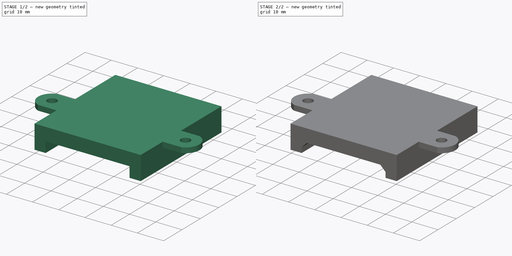
[diagram: build sequence overview — one tinted view per stage of 2, left to right]
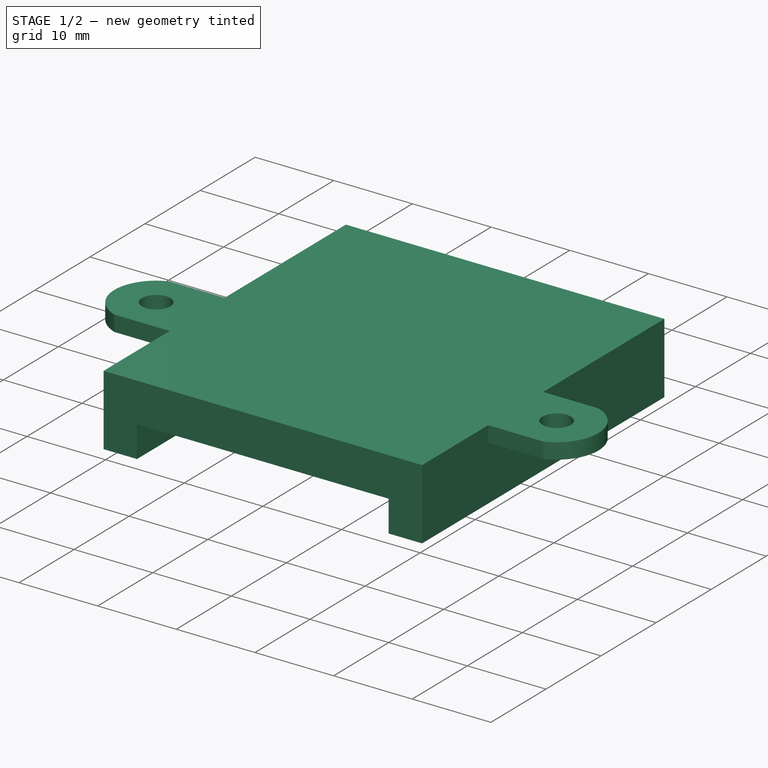
[diagram: stage 1 of 2 — iso view after this stage's code; geometry added in this stage tinted green]
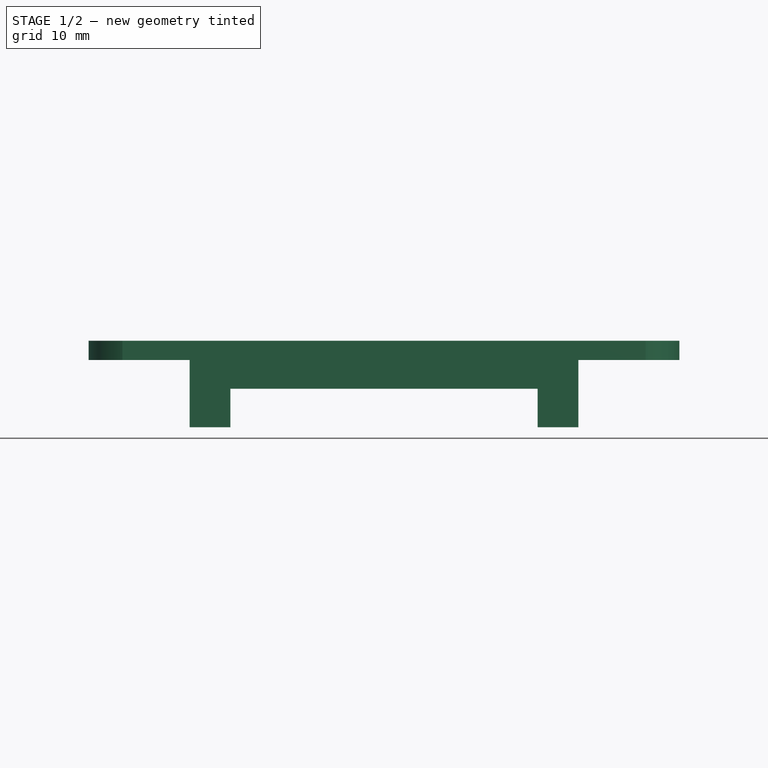
[diagram: stage 1 of 2 — front view after this stage's code; geometry added in this stage tinted green]
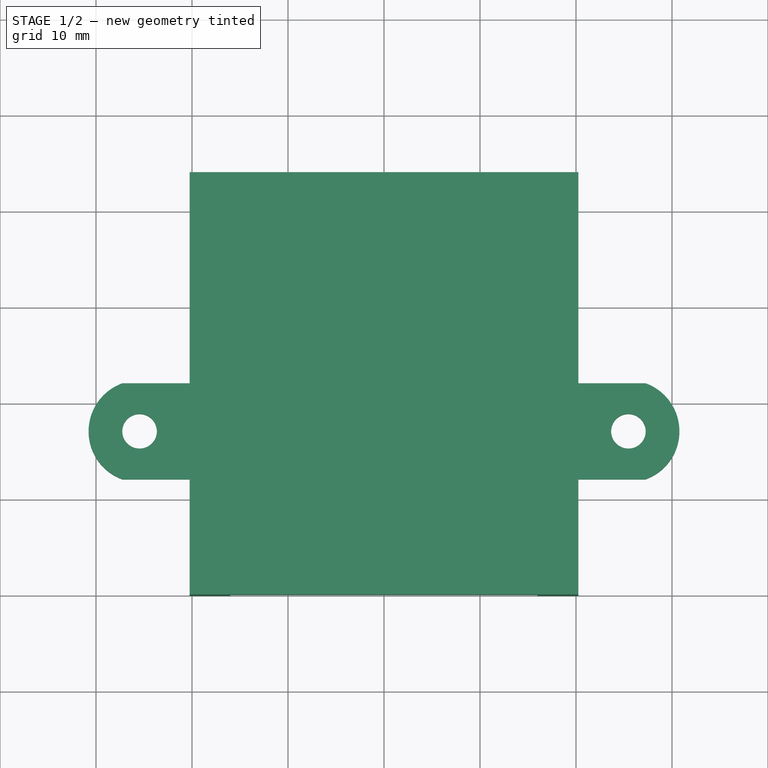
[diagram: stage 1 of 2 — top view after this stage's code; geometry added in this stage tinted green]
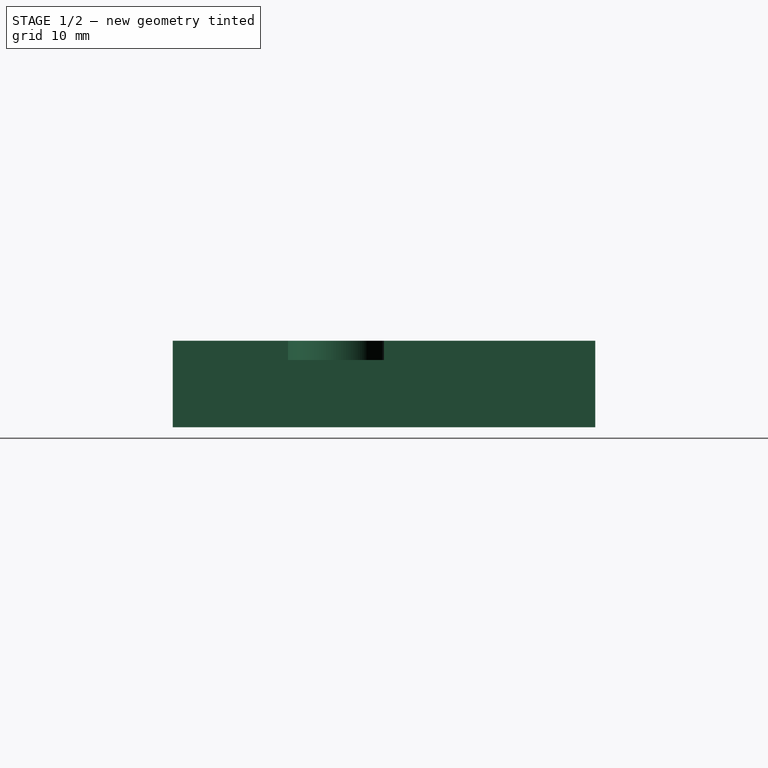
[diagram: stage 1 of 2 — right view after this stage's code; geometry added in this stage tinted green]
FCSTD DOCUMENT  (FreeCAD 0.16R6698 (Git))
Label: esc-frame
License: All rights reserved
LicenseURL: http://en.wikipedia.org/wiki/All_rights_reserved
objects: Sketcher::SketchObject×2, Part::Extrusion×2, Part::MultiFuse×1, Part::Chamfer×1
note: 6 computed .brp shape members not serialized (recipe doc carries the construction recipe); baked Part::Feature solids carry a one-line shape summary decoded from their .brp

FEATURE [Sketcher::SketchObject] Sketch
  sketch-geometry (20):
    g0: LineSegment StartX=-20.25 StartY=44 StartZ=0 EndX=-20.25 EndY=22 EndZ=0
    g1: LineSegment StartX=-20.25 StartY=22 StartZ=0 EndX=-27.25 EndY=22 EndZ=0
    g2: LineSegment [constr] StartX=-27.25 StartY=22 StartZ=0 EndX=-27.25 EndY=12 EndZ=0
    g3: LineSegment StartX=-27.25 StartY=12 StartZ=0 EndX=-20.25 EndY=12 EndZ=0
    g4: LineSegment StartX=-20.25 StartY=12 StartZ=0 EndX=-20.25 EndY=0 EndZ=0
    g5: LineSegment StartX=-20.25 StartY=0 StartZ=0 EndX=20.25 EndY=0 EndZ=0
    g6: LineSegment StartX=20.25 StartY=0 StartZ=0 EndX=20.25 EndY=12 EndZ=0
    g7: LineSegment StartX=20.25 StartY=12 StartZ=0 EndX=27.25 EndY=12 EndZ=0
    g8: LineSegment [constr] StartX=27.25 StartY=12 StartZ=0 EndX=27.25 EndY=22 EndZ=0
    g9: LineSegment StartX=27.25 StartY=22 StartZ=0 EndX=20.25 EndY=22 EndZ=0
    g10: LineSegment StartX=20.25 StartY=22 StartZ=0 EndX=20.25 EndY=44 EndZ=0
    g11: LineSegment StartX=20.25 StartY=44 StartZ=0 EndX=-20.25 EndY=44 EndZ=0
    g12: LineSegment [constr] StartX=0 StartY=0 StartZ=0 EndX=0 EndY=17 EndZ=0
    g13: LineSegment [constr] StartX=-25.4585 StartY=17 StartZ=0 EndX=25.4585 EndY=17 EndZ=0
    g14: LineSegment [constr] StartX=-20.25 StartY=22 StartZ=0 EndX=-25.4585 EndY=17 EndZ=0
    g15: LineSegment [constr] StartX=-25.4585 StartY=17 StartZ=0 EndX=-20.25 EndY=12 EndZ=0
    g16: Circle CenterX=-25.4585 CenterY=17 CenterZ=0 NormalX=0 NormalY=0 NormalZ=1 Radius=1.8
    g17: Circle CenterX=25.4585 CenterY=17 CenterZ=0 NormalX=0 NormalY=0 NormalZ=1 Radius=1.8
    g18: ArcOfCircle CenterX=-25.4585 CenterY=17 CenterZ=0 NormalX=0 NormalY=0 NormalZ=1 Radius=5.31126 StartAngle=1.91485 EndAngle=4.36834
    g19: ArcOfCircle CenterX=25.4585 CenterY=17 CenterZ=0 NormalX=0 NormalY=0 NormalZ=1 Radius=5.31126 StartAngle=5.05644 EndAngle=7.50993
  constraints (56):
    c: Vertical(g0)
    c: Coincident(g0,g1)
    c: Horizontal(g1)
    c: Coincident(g1,g2)
    c: Vertical(g2)
    c: Coincident(g2,g3)
    c: Horizontal(g3)
    c: Coincident(g3,g4)
    c: PointOnObject(g4,g-1)
    c: Vertical(g4)
    c: Coincident(g4,g5)
    c: Coincident(g5,g6)
    c: Vertical(g6)
    c: Coincident(g6,g7)
    c: Horizontal(g7)
    c: Coincident(g7,g8)
    c: Vertical(g8)
    c: Coincident(g8,g9)
    c: Horizontal(g9)
    c: Coincident(g9,g10)
    c: Vertical(g10)
    c: Coincident(g10,g11)
    c: Coincident(g11,g0)
    c: Horizontal(g11)
    c: Symmetric(g4,g5,g-2)
    c: PointOnObject(g9,g6)
    c: PointOnObject(g0,g4)
    c: Equal(g2,g8)
    c: Equal(g4,g6)
    c: DistanceY(g-1,g10) = 44
    c: DistanceX(g5,g5) = 40.5
    c: DistanceY(g-1,g0) = 22
    c: DistanceY(g2,g2) = 10
    c: Equal(g3,g7)
    c: DistanceX(g3,g3) = 7
    c: Coincident(g12,g-1)
    c: Vertical(g12)
    c: Horizontal(g13)
    c: PointOnObject(g12,g13)
    c: Symmetric(g13,g13,g12)
    c: DistanceX(g13,g13) = 50.917
    c: Coincident(g0,g14)
    c: Coincident(g14,g13)
    c: Coincident(g14,g15)
    c: Equal(g15,g14)
    c: Coincident(g15,g3)
    c: Coincident(g16,g13)
    c: Coincident(g17,g13)
    c: Equal(g16,g17)
    c: Radius(g16) = 1.8
    c: Coincident(g18,g13)
    c: Coincident(g18,g1)
    c: Coincident(g18,g2)
    c: Coincident(g19,g13)
    c: Coincident(g19,g8)
    c: Coincident(g19,g7)
FEATURE [Part::Extrusion] Extrude
  Base = -> Sketch
  Dir = (0,0,2)
  Solid = true
FEATURE [Sketcher::SketchObject] Sketch001
  Placement = pos=(0,0,0) rot=(-1,0,0;4.71239rad)
  sketch-geometry (8):
    g0: LineSegment StartX=-20.25 StartY=0 StartZ=0 EndX=20.25 EndY=0 EndZ=0
    g1: LineSegment StartX=20.25 StartY=0 StartZ=0 EndX=20.25 EndY=-7 EndZ=0
    g2: LineSegment StartX=20.25 StartY=-7 StartZ=0 EndX=16 EndY=-7 EndZ=0
    g3: LineSegment StartX=16 StartY=-7 StartZ=0 EndX=16 EndY=-3 EndZ=0
    g4: LineSegment StartX=16 StartY=-3 StartZ=0 EndX=-16 EndY=-3 EndZ=0
    g5: LineSegment StartX=-16 StartY=-3 StartZ=0 EndX=-16 EndY=-7 EndZ=0
    g6: LineSegment StartX=-16 StartY=-7 StartZ=0 EndX=-20.25 EndY=-7 EndZ=0
    g7: LineSegment StartX=-20.25 StartY=-7 StartZ=0 EndX=-20.25 EndY=0 EndZ=0
  constraints (24):
    c: PointOnObject(g0,g-1)
    c: Horizontal(g0)
    c: Coincident(g0,g1)
    c: Vertical(g1)
    c: Coincident(g1,g2)
    c: Horizontal(g2)
    c: Coincident(g2,g3)
    c: Vertical(g3)
    c: Coincident(g3,g4)
    c: Horizontal(g4)
    c: Coincident(g4,g5)
    c: Vertical(g5)
    c: Coincident(g5,g6)
    c: Horizontal(g6)
    c: Coincident(g6,g7)
    c: Vertical(g7)
    c: Coincident(g7,g0)
    c: Symmetric(g4,g3,g-2)
    c: Equal(g6,g2)
    c: Equal(g5,g3)
    c: DistanceX(g4,g4) = 32
    c: DistanceX(g0,g0) = 40.5
    c: DistanceY(g7,g7) = 7
    c: DistanceY(g4,g-1) = 3
FEATURE [Part::Extrusion] Extrude001
  Base = -> Sketch001
  Dir = (0,44,0)
  Solid = true
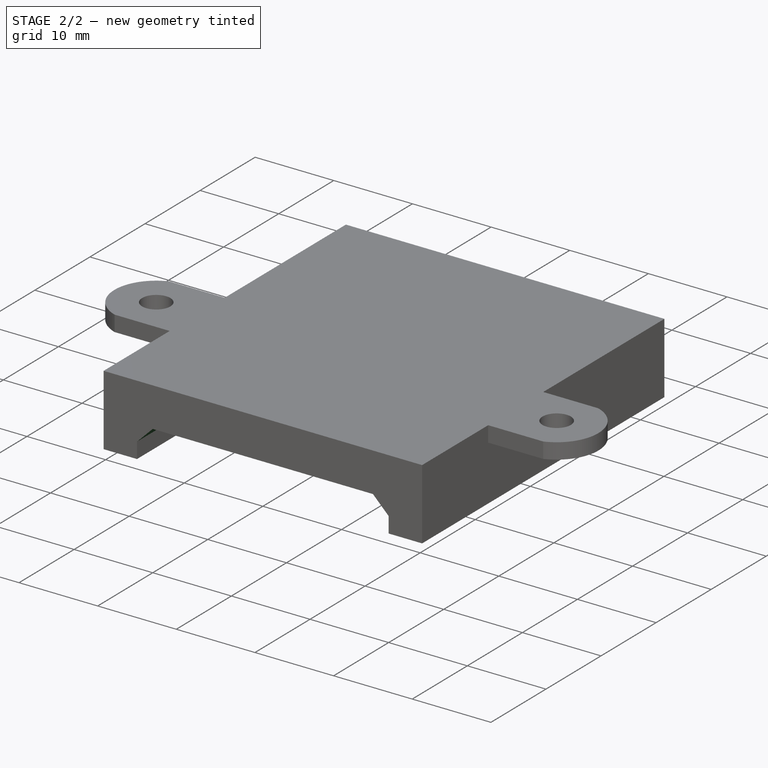
[diagram: stage 2 of 2 — iso view after this stage's code; geometry added in this stage tinted green]
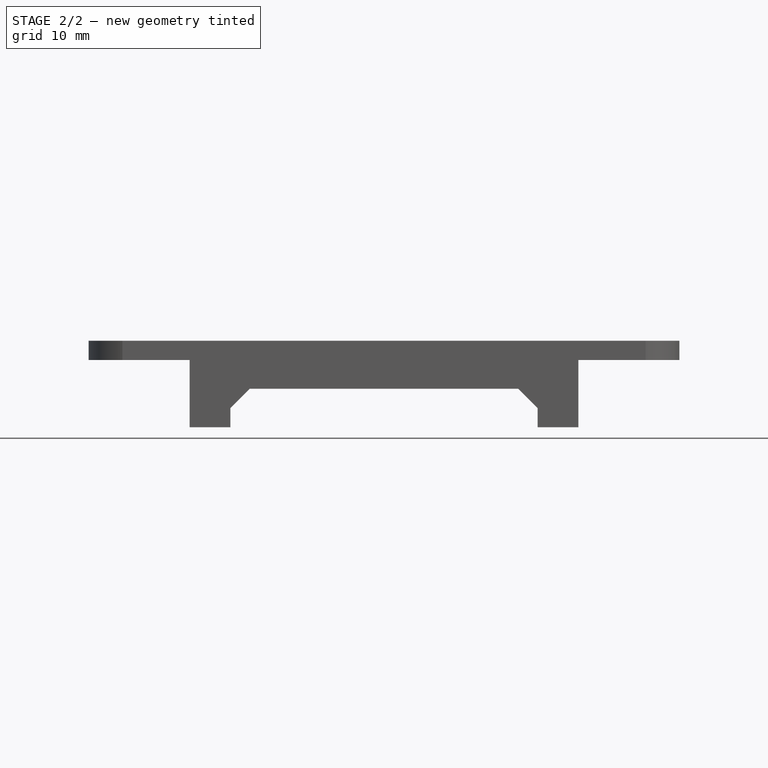
[diagram: stage 2 of 2 — front view after this stage's code; geometry added in this stage tinted green]
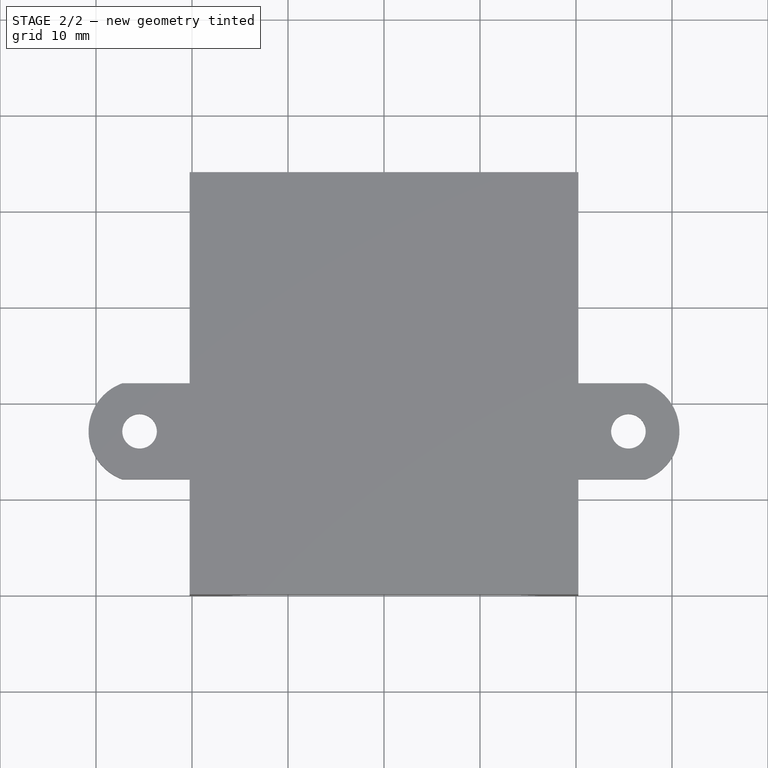
[diagram: stage 2 of 2 — top view after this stage's code; geometry added in this stage tinted green]
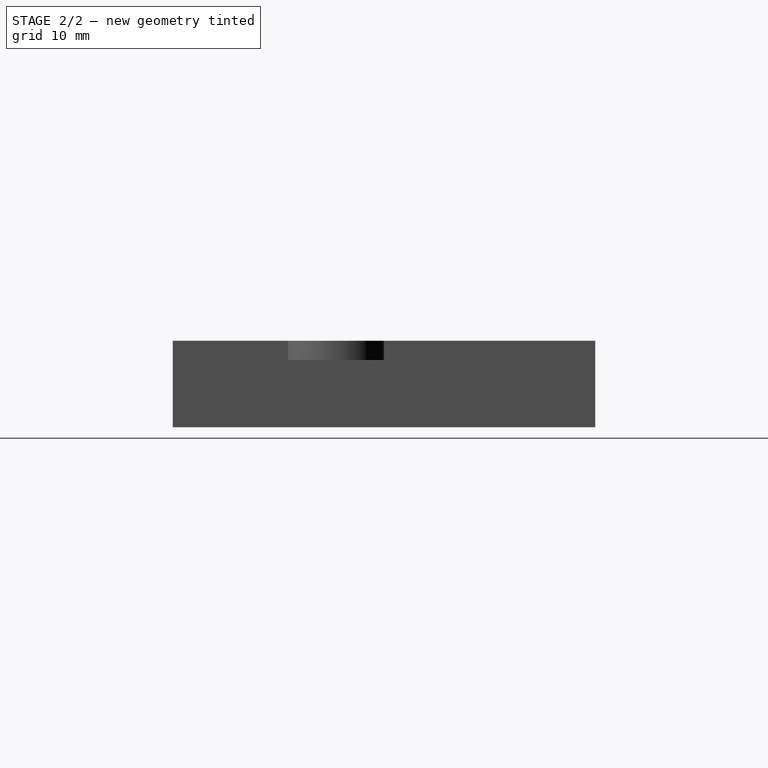
[diagram: stage 2 of 2 — right view after this stage's code; geometry added in this stage tinted green]
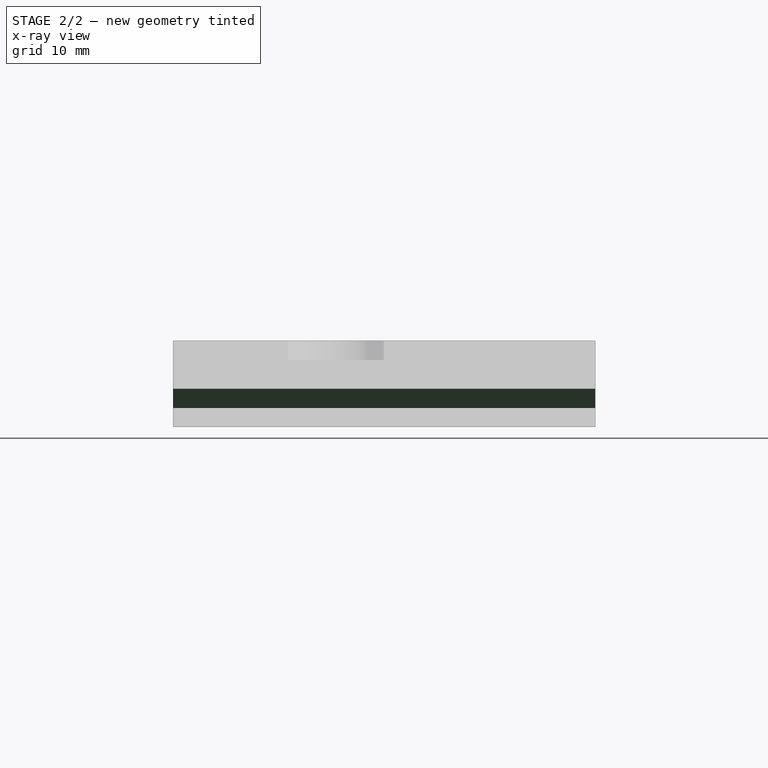
[diagram: stage 2 of 2 — x-ray composite at the right view; earlier geometry ghosted, this stage's added geometry solid]
FEATURE [Part::MultiFuse] Fusion
  Shapes = -> [Extrude,Extrude001]
FEATURE [Part::Chamfer] Chamfer
  Base = -> Fusion
  Edges = 2 edges r=2: [Edge63,Edge64]
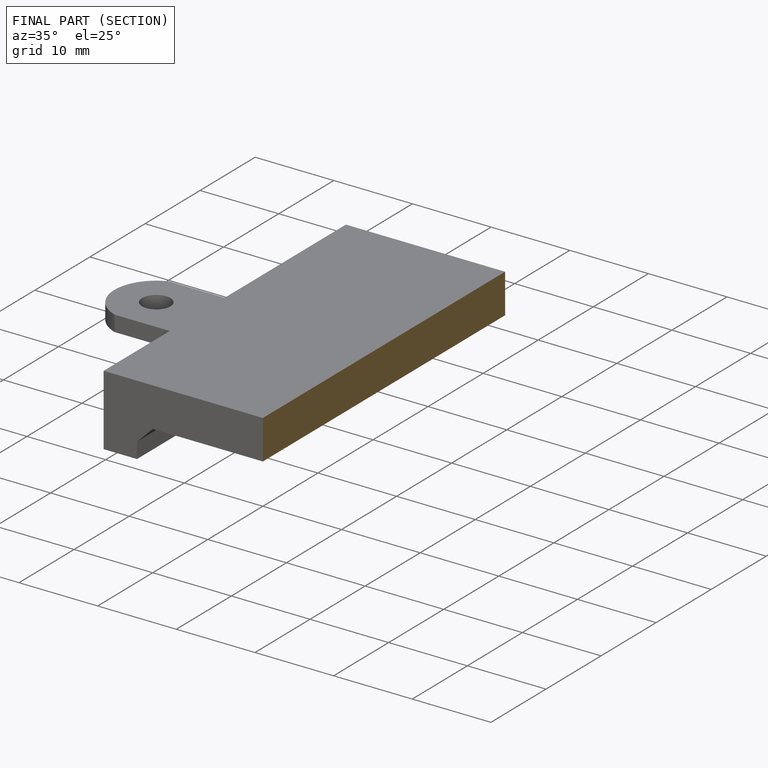
[diagram: finished part — half-section view (interior)]
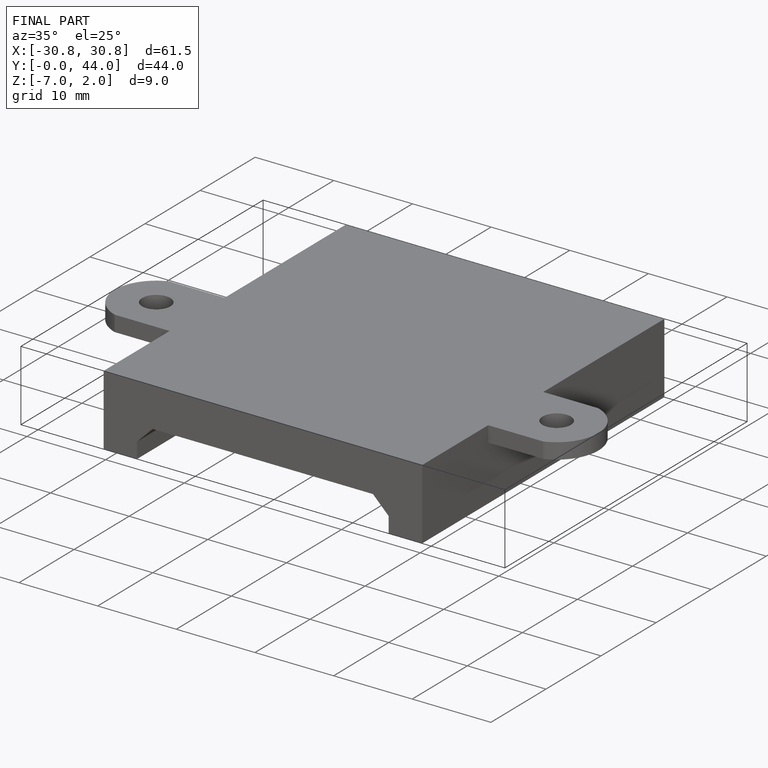
[diagram: finished part — iso view with bounding-box wireframe]
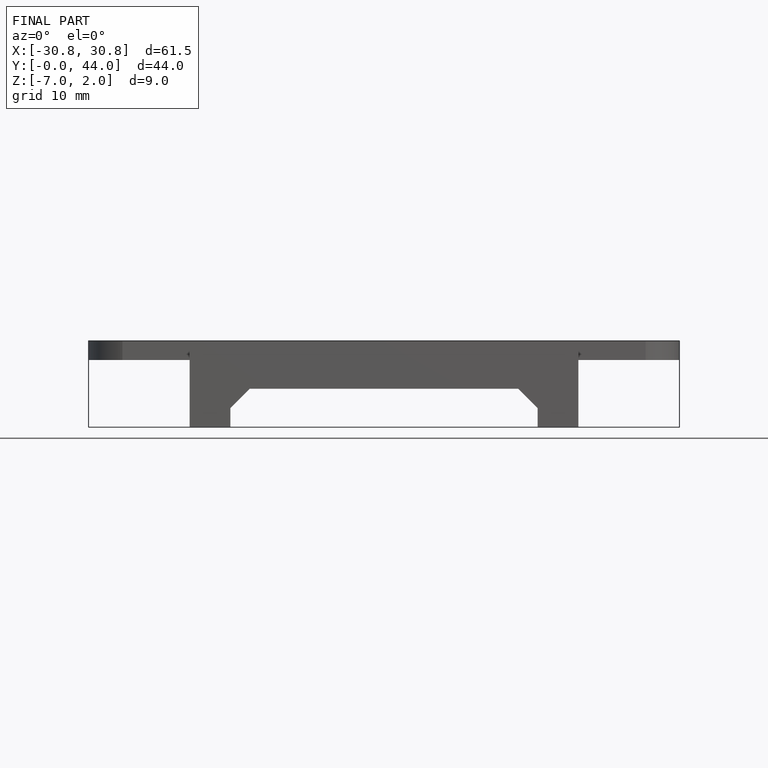
[diagram: finished part — front view with bounding-box wireframe]
